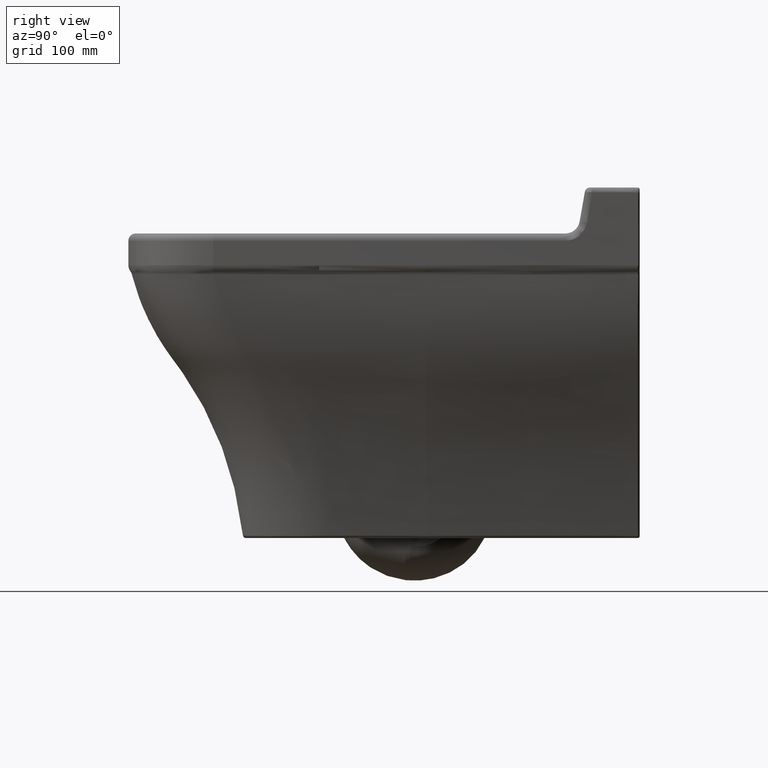
[diagram: clean part render]
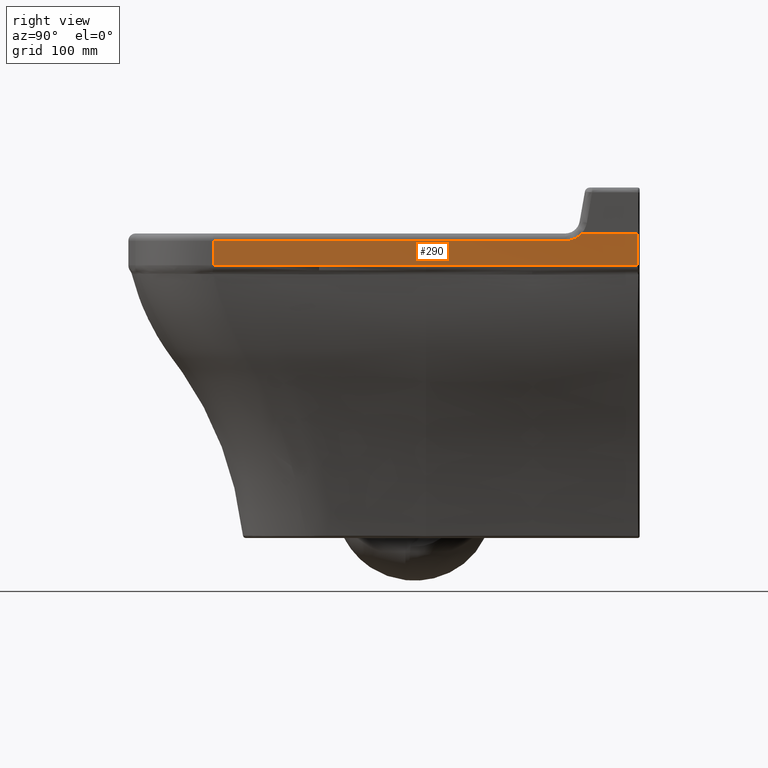
[diagram: same view with one face highlighted and labeled with its STEP entity id]
A machine part, right view. The second image highlights one B-rep face of the part: STEP entity #290.
In plain terms, the highlighted cylindrical surface (partial cylindrical patch) has radius 7678.38 mm, axis along (0, 0, -1).
Its self-contained STEP definition (entity closure, byte-faithful):
#136=CYLINDRICAL_SURFACE('',#2111,7678.38134541338);
#173=LINE('',#5095,#192);
#174=LINE('',#5116,#193);
#192=VECTOR('',#2250,1.);
#193=VECTOR('',#2255,1.);
#221=CIRCLE('',#2110,7678.38134541338);
#290=ADVANCED_FACE('',(#449),#136,.T.);
#449=FACE_OUTER_BOUND('',#589,.T.);
#589=EDGE_LOOP('',(#1052,#1053,#1054,#1055,#1056,#1057,#1058));
#780=B_SPLINE_CURVE_WITH_KNOTS('',3,(#5110,#5111,#5112,#5113),
 .UNSPECIFIED.,.F.,.F.,(4,4),(0.,1.),.UNSPECIFIED.);
#781=B_SPLINE_CURVE_WITH_KNOTS('',3,(#5118,#5119,#5120,#5121),
 .UNSPECIFIED.,.F.,.F.,(4,4),(0.,1.),.UNSPECIFIED.);
#782=B_SPLINE_CURVE_WITH_KNOTS('',3,(#5123,#5124,#5125,#5126,#5127,#5128),
 .UNSPECIFIED.,.F.,.F.,(4,2,4),(0.,0.5,1.),.UNSPECIFIED.);
#783=B_SPLINE_CURVE_WITH_KNOTS('',3,(#5131,#5132,#5133,#5134,#5135,#5136,
#5137,#5138,#5139,#5140,#5141,#5142,#5143,#5144,#5145,#5146,#5147,#5148,
#5149,#5150,#5151,#5152,#5153,#5154,#5155,#5156,#5157,#5158,#5159,#5160,
#5161,#5162,#5163,#5164,#5165,#5166,#5167,#5168,#5169,#5170,#5171,#5172,
#5173),.UNSPECIFIED.,.F.,.F.,(4,1,1,2,2,2,2,1,2,2,1,2,2,2,1,1,2,2,2,2,2,
1,1,1,2,4),(0.,0.0625000000000068,0.070312500000008,0.0742187500000083,
0.0781250000000085,0.0937500000000077,0.125000000000007,0.140625000000006,
0.148437500000006,0.156250000000006,0.187500000000005,0.218750000000004,
0.226562500000004,0.234375000000005,0.250000000000005,0.265625000000005,
0.269531250000005,0.273437500000005,0.281250000000005,0.296875000000004,
0.300781250000004,0.304687500000004,0.312500000000003,0.375000000000004,
0.500000000000003,1.),.UNSPECIFIED.);
#1052=ORIENTED_EDGE('',*,*,#1833,.T.);
#1053=ORIENTED_EDGE('',*,*,#1834,.T.);
#1054=ORIENTED_EDGE('',*,*,#1835,.T.);
#1055=ORIENTED_EDGE('',*,*,#1836,.T.);
#1056=ORIENTED_EDGE('',*,*,#1837,.T.);
#1057=ORIENTED_EDGE('',*,*,#1830,.F.);
#1058=ORIENTED_EDGE('',*,*,#1838,.T.);
#1621=VERTEX_POINT('',#5096);
#1622=VERTEX_POINT('',#5097);
#1623=VERTEX_POINT('',#5114);
#1624=VERTEX_POINT('',#5115);
#1625=VERTEX_POINT('',#5117);
#1626=VERTEX_POINT('',#5122);
#1627=VERTEX_POINT('',#5129);
#1830=EDGE_CURVE('',#1621,#1622,#173,.T.);
#1833=EDGE_CURVE('',#1623,#1624,#780,.T.);
#1834=EDGE_CURVE('',#1624,#1625,#174,.T.);
#1835=EDGE_CURVE('',#1625,#1626,#781,.T.);
#1836=EDGE_CURVE('',#1626,#1627,#782,.T.);
#1837=EDGE_CURVE('',#1627,#1622,#221,.T.);
#1838=EDGE_CURVE('',#1621,#1623,#783,.T.);
#2110=AXIS2_PLACEMENT_3D('',#5130,#2256,#2257);
#2111=AXIS2_PLACEMENT_3D('',#5174,#2258,#2259);
#2250=DIRECTION('',(0.,0.,1.));
#2255=DIRECTION('',(0.,0.,1.));
#2256=DIRECTION('',(0.,0.,-1.));
#2257=DIRECTION('',(1.,0.,0.));
#2258=DIRECTION('',(0.,0.,-1.));
#2259=DIRECTION('',(1.,0.,0.));
#5095=CARTESIAN_POINT('',(171.313219735348,-467.255228076815,0.));
#5096=CARTESIAN_POINT('',(171.313219735348,-467.255228076815,-32.8584416593726));
#5097=CARTESIAN_POINT('',(171.313219735348,-467.255228076815,-7.5));
#5110=CARTESIAN_POINT('',(177.733877145488,-247.070235334886,-32.8587052059706));
#5111=CARTESIAN_POINT('',(178.815058273384,-174.059578568654,-32.8586611021707));
#5112=CARTESIAN_POINT('',(178.854710889863,-101.033499093496,-32.8586169983708));
#5113=CARTESIAN_POINT('',(177.852818860268,-28.0217112340764,-32.8585728945709));
#5114=CARTESIAN_POINT('',(177.733877145485,-247.070235334889,-32.858705205971));
#5115=CARTESIAN_POINT('',(177.85281882349,-28.0217112345739,-32.8585753100339));
#5116=CARTESIAN_POINT('',(177.852818859053,-28.0217111455217,0.));
#5117=CARTESIAN_POINT('',(177.852819386617,-28.0217111382767,7.63431099321384E-11));
#5118=CARTESIAN_POINT('',(177.852818859052,-28.0217111455163,1.49383712772313E-10));
#5119=CARTESIAN_POINT('',(178.118443289069,-47.3788014761272,1.49383712772313E-10));
#5120=CARTESIAN_POINT('',(178.310862053929,-66.7368963581632,1.49383712772313E-10));
#5121=CARTESIAN_POINT('',(178.430069649628,-86.0954420668238,1.49383712772313E-10));
#5122=CARTESIAN_POINT('',(178.430053871955,-86.0954421640011,1.12371141131232E-13));
#5123=CARTESIAN_POINT('',(178.430069630289,-86.095438926228,-2.81190533580363E-6));
#5124=CARTESIAN_POINT('',(178.443025337513,-88.199362190254,-2.3499621180863));
#5125=CARTESIAN_POINT('',(178.458193253405,-90.810455978176,-4.2532986973371));
#5126=CARTESIAN_POINT('',(178.487880788545,-96.5529125983841,-6.82044798371476));
#5127=CARTESIAN_POINT('',(178.502619961239,-99.7424112162527,-7.49999999895521));
#5128=CARTESIAN_POINT('',(178.515090323669,-102.882343159451,-7.5));
#5129=CARTESIAN_POINT('',(178.515090323666,-102.88234315945,-7.5));
#5130=CARTESIAN_POINT('',(-7499.80569978058,-133.377094266061,-7.5));
#5131=CARTESIAN_POINT('',(171.31321973535,-467.255228076816,-32.8584416590532));
#5132=CARTESIAN_POINT('',(171.493389633358,-463.115679620717,-32.8671307593069));
#5133=CARTESIAN_POINT('',(171.71053154406,-458.040595400071,-32.8731817396158));
#5134=CARTESIAN_POINT('',(171.954269452206,-452.186974921315,-32.8751463297441));
#5135=CARTESIAN_POINT('',(171.993125933328,-451.249650591464,-32.8753401451393));
#5136=CARTESIAN_POINT('',(172.019111869053,-450.621863564487,-32.8754434925036));
#5137=CARTESIAN_POINT('',(172.026677441043,-450.438779390711,-32.8754644960141));
#5138=CARTESIAN_POINT('',(172.073164296626,-449.313152359865,-32.875571239356));
#5139=CARTESIAN_POINT('',(172.112504255686,-448.356748614795,-32.8755454955163));
#5140=CARTESIAN_POINT('',(172.236787407434,-445.319823484342,-32.875134848458));
#5141=CARTESIAN_POINT('',(172.328001208027,-443.071588432943,-32.8744165297001));
#5142=CARTESIAN_POINT('',(172.476474870547,-439.363773903123,-32.8726722204844));
#5143=CARTESIAN_POINT('',(172.553622192307,-437.426001061656,-32.8716333581069));
#5144=CARTESIAN_POINT('',(172.634944523957,-435.362422639009,-32.8703444340749));
#5145=CARTESIAN_POINT('',(172.690064280949,-433.958746045782,-32.8694295821304));
#5146=CARTESIAN_POINT('',(172.72822226717,-432.983539450729,-32.8687798390731));
#5147=CARTESIAN_POINT('',(172.893456786611,-428.740058166837,-32.8660027231665));
#5148=CARTESIAN_POINT('',(173.110546700937,-423.052000296214,-32.8624224516645));
#5149=CARTESIAN_POINT('',(173.240416248126,-419.56725573851,-32.8605684080598));
#5150=CARTESIAN_POINT('',(173.295735608773,-418.077878722663,-32.8599490770246));
#5151=CARTESIAN_POINT('',(173.303488023868,-417.868912609432,-32.859867552192));
#5152=CARTESIAN_POINT('',(173.328813132409,-417.185038863985,-32.8596604661174));
#5153=CARTESIAN_POINT('',(173.34305178945,-416.799933043859,-32.8595678913686));
#5154=CARTESIAN_POINT('',(173.390437571194,-415.51510659252,-32.8593230719875));
#5155=CARTESIAN_POINT('',(173.466080185695,-413.456647646578,-32.8590843924539));
#5156=CARTESIAN_POINT('',(173.578278615642,-410.363794012555,-32.8590133071711));
#5157=CARTESIAN_POINT('',(173.6495856143,-408.375704537445,-32.8590423671503));
#5158=CARTESIAN_POINT('',(173.678815107736,-407.55888136182,-32.8590594752862));
#5159=CARTESIAN_POINT('',(173.697988647473,-407.021809572829,-32.8590718904092));
#5160=CARTESIAN_POINT('',(173.745836507848,-405.677864162154,-32.8591009374048));
#5161=CARTESIAN_POINT('',(173.773700103902,-404.89088673444,-32.8591170440713));
#5162=CARTESIAN_POINT('',(173.845487758903,-402.856923799728,-32.8591555900795));
#5163=CARTESIAN_POINT('',(173.877636550087,-401.93690863223,-32.8591682554298));
#5164=CARTESIAN_POINT('',(173.89877351521,-401.331860548658,-32.8591677971318));
#5165=CARTESIAN_POINT('',(173.898862765096,-401.329430765267,-32.8591681604458));
#5166=CARTESIAN_POINT('',(173.918861089653,-400.756098241064,-32.8591578602313));
#5167=CARTESIAN_POINT('',(173.948810386145,-399.896097773787,-32.8591425240806));
#5168=CARTESIAN_POINT('',(174.13757364395,-394.449396311836,-32.859047564375));
#5169=CARTESIAN_POINT('',(174.619861790182,-380.11547198091,-32.8588319217128));
#5170=CARTESIAN_POINT('',(175.045845525285,-366.35369244532,-32.8587125880848));
#5171=CARTESIAN_POINT('',(176.38353131274,-320.478695254116,-32.8585096611637));
#5172=CARTESIAN_POINT('',(177.19029895431,-283.777313618328,-32.8587584274089));
#5173=CARTESIAN_POINT('',(177.733877126768,-247.07023659889,-32.8587811110887));
#5174=CARTESIAN_POINT('',(-7499.80569978058,-133.377094266061,0.));